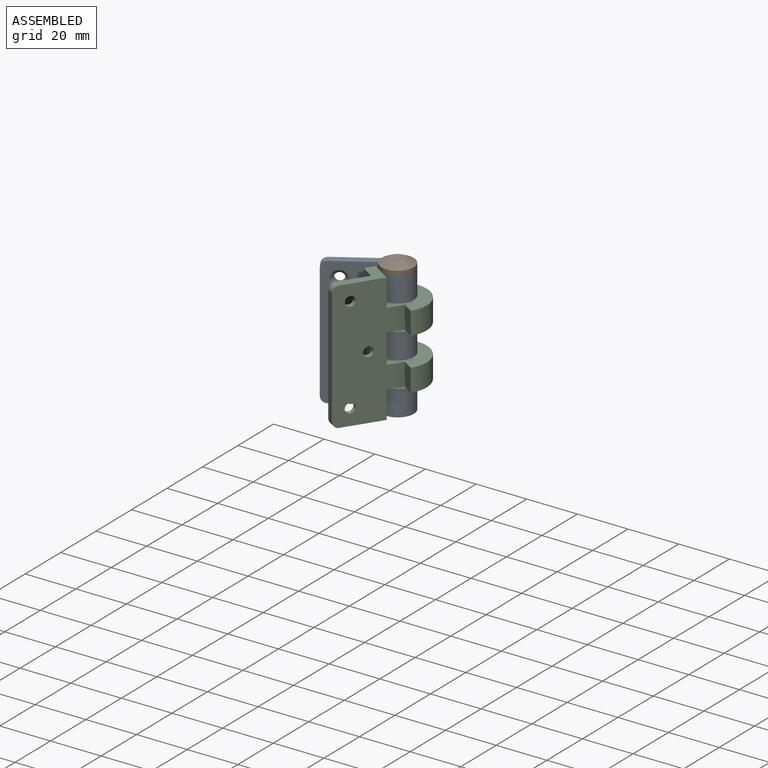
[diagram: assembled view]
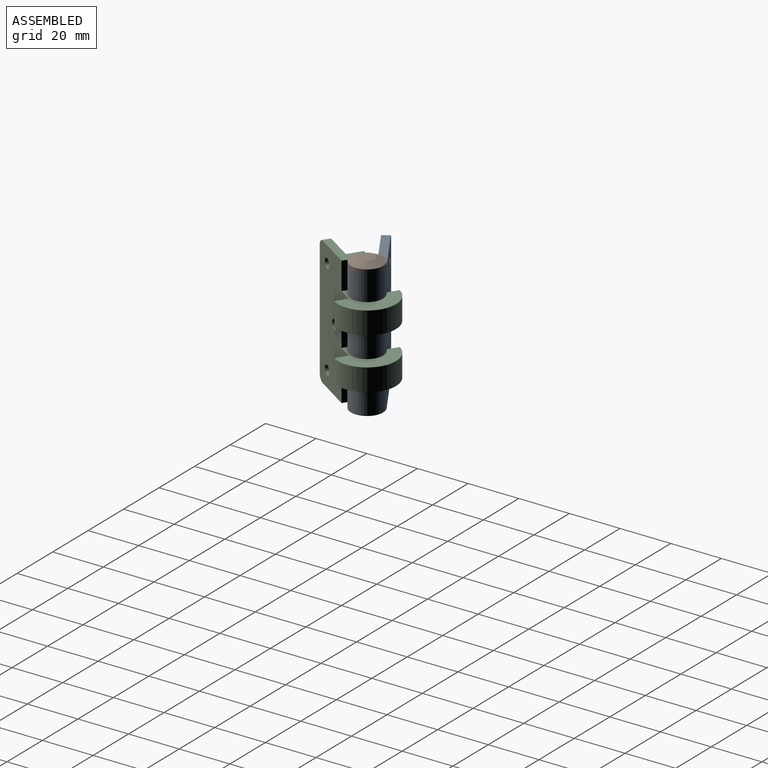
[diagram: assembled view, second angle]
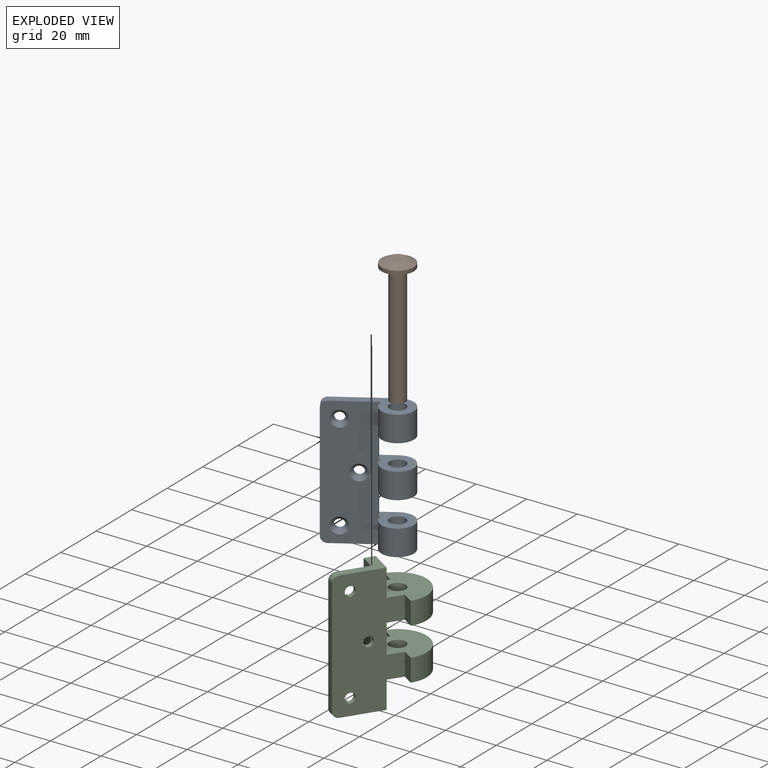
[diagram: exploded view]
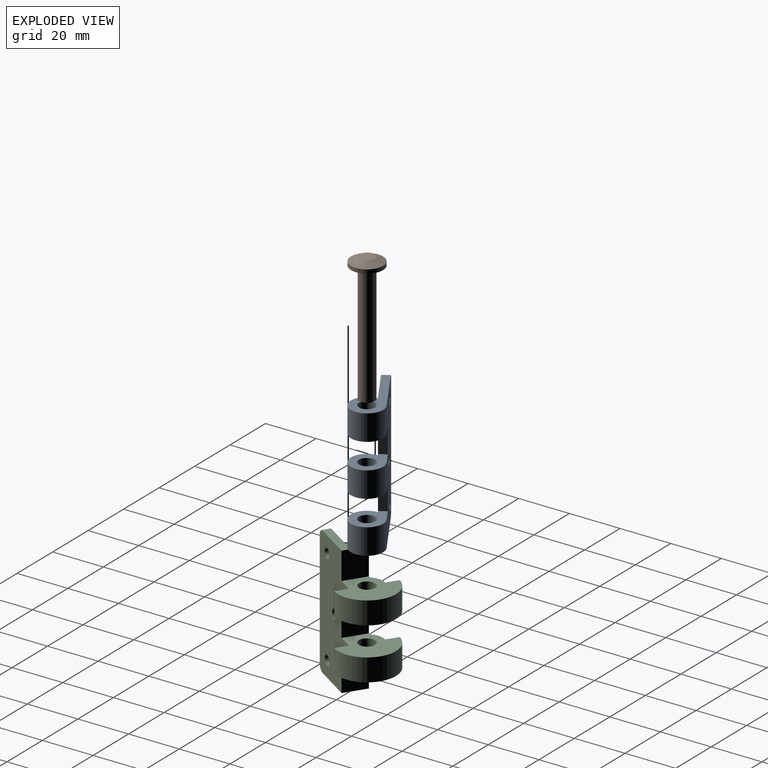
[diagram: exploded view, second angle]
ASSEMBLY  parts=3 mates=3
PART A: 25 faces, bbox 31.8x12.7x50.8 mm
  f0: plane 50.8x19.9mm, normal (0,-1,0), area 895.9mm2, adj f3,f4,f5,f6,f7,f8,f10,f11
  f1: cylinder r=3.17mm len=10.16mm, axis (0,0,1), area 202.7mm2, adj f8,f16
  f2: cylinder r=3.17mm len=10.16mm, axis (0,0,1), area 202.7mm2, adj f6,f12
  f3: cylinder r=6.35mm len=12.7mm, axis (0,0,1), area 337.8mm2, adj f0,f8,f9,f16
  f4: cylinder r=6.35mm len=12.7mm, axis (0,0,1), area 337.8mm2, adj f0,f9,f14,f17
  f5: cylinder r=6.35mm len=12.7mm, axis (0,0,1), area 337.8mm2, adj f0,f6,f9,f12
  f6: plane 29.21x12.7mm, normal (0,0,1), area 155.2mm2, adj f0,f2,f5,f9,f10
  f7: plane 45.72x3.18mm, normal (-1,0,0), area 145.2mm2, adj f0,f9,f10,f11
  f8: plane 29.21x12.7mm, normal (0,0,-1), area 155.2mm2, adj f0,f1,f3,f9,f11
  f9: plane 50.8x25.4mm, normal (0,1,0), area 1124.3mm2, adj f3,f4,f5,f6,f7,f8,f10,f11
  f10: cylinder r=2.54mm len=3.18mm, axis (0,-1,0), area 12.7mm2, adj f0,f6,f7,f9
  f11: cylinder r=2.54mm len=3.18mm, axis (0,1,0), area 12.7mm2, adj f0,f7,f8,f9
  f12: plane 12.7x12.7mm, normal (0,0,-1), area 102.8mm2, adj f0,f2,f5,f9,f13
  f13: plane 10.16x3.18mm, normal (1,0,0), area 32.3mm2, adj f0,f9,f12,f14
  f14: plane 12.7x12.7mm, normal (0,0,1), area 102.8mm2, adj f0,f4,f9,f13,f18
  f15: plane 10.16x3.18mm, normal (1,0,0), area 32.3mm2, adj f0,f9,f16,f17
  f16: plane 12.7x12.7mm, normal (0,0,1), area 102.8mm2, adj f0,f1,f3,f9,f15
  f17: plane 12.7x12.7mm, normal (0,0,-1), area 102.8mm2, adj f0,f4,f9,f15,f18
  f18: cylinder r=3.17mm len=10.16mm, axis (0,0,1), area 202.7mm2, adj f14,f17
  f19: cylinder r=1.91mm len=3.81mm, axis (0,-1,0), area 22.8mm2, adj f9,f20
  f20: cone r=1.91mm half-angle=45deg, axis (0,-1,0), area 28.7mm2, adj f0,f19
  f21: cylinder r=1.91mm len=3.81mm, axis (0,-1,0), area 22.8mm2, adj f9,f22
  f22: cone r=1.91mm half-angle=45deg, axis (0,-1,0), area 28.7mm2, adj f0,f21
  f23: cylinder r=1.91mm len=3.81mm, axis (0,-1,0), area 22.8mm2, adj f9,f24
  f24: cone r=1.91mm half-angle=45deg, axis (0,-1,0), area 28.7mm2, adj f0,f23
PART B: 6 faces, bbox 12.7x12.7x50.8 mm
  f0: cylinder r=6.35mm len=12.7mm, axis (0,0,-1), area 60mm2, adj f1,f5
  f1: plane 12.7x12.7mm, normal (0,0,-1), area 97.5mm2, adj f0,f2
  f2: cylinder r=3.05mm len=47.63mm, axis (0,0,-1), area 912.1mm2, adj f1,f3
  f3: plane 6.1x6.1mm, normal (0,0,-1), area 29.2mm2, adj f2
  f4: plane 6.1x6.1mm, normal (0,0,1), area 29.2mm2, adj f5
  f5: cone r=3.05mm half-angle=63.2deg, axis (0,0,-1), area 109.3mm2, adj f0,f4
PART C: 33 faces, bbox 36.8x22.9x50.8 mm
  f0: plane 50.8x14.83mm, normal (0,-1,0), area 659mm2, adj f11,f12,f13,f14,f25,f27,f30,f31
  f1: plane 50.8x25.4mm, normal (0,1,0), area 1043.7mm2, adj f2,f3,f11,f12,f13,f15,f16,f17
  f2: plane 8.89x5.08mm, normal (1,0,0), area 45.2mm2, adj f1,f4,f15,f18
  f3: plane 8.89x5.08mm, normal (1,0,0), area 45.2mm2, adj f1,f5,f19,f21
  f4: cylinder r=11.43mm len=22.86mm, axis (0,0,1), area 319.2mm2, adj f2,f6,f15,f18
  f5: cylinder r=11.43mm len=22.86mm, axis (0,0,1), area 319.2mm2, adj f3,f7,f19,f21
  f6: plane 8.89x5.08mm, normal (1,0,0), area 45.2mm2, adj f4,f8,f15,f18
  f7: plane 8.89x5.08mm, normal (1,0,0), area 45.2mm2, adj f5,f9,f19,f21
  f8: cylinder r=6.35mm len=8.89mm, axis (0,0,1), area 59.1mm2, adj f6,f10,f15,f18
  f9: cylinder r=6.35mm len=8.89mm, axis (0,0,1), area 59.1mm2, adj f7,f10,f19,f21
  f10: plane 50.8x5.07mm, normal (0,-1,0), area 229.5mm2, adj f8,f9,f11,f13,f14,f15,f16,f17
  f11: plane 16.51x9.53mm, normal (0,0,-1), area 79.2mm2, adj f0,f1,f10,f14,f16,f31
  f12: plane 45.72x3.18mm, normal (1,0,0), area 145.2mm2, adj f0,f1,f31,f32
  f13: plane 16.51x9.53mm, normal (0,0,1), area 79.2mm2, adj f0,f1,f10,f14,f20,f32
  f14: plane 50.8x6.35mm, normal (1,0,0), area 322.6mm2, adj f0,f10,f11,f13,f28
  f15: plane 22.86x17.78mm, normal (0,0,-1), area 246.4mm2, adj f1,f2,f4,f6,f8,f10,f16,f22
  f16: plane 10.8x9.53mm, normal (-1,0,0), area 102.8mm2, adj f1,f10,f11,f15
  f17: plane 11.43x9.53mm, normal (-1,0,0), area 108.9mm2, adj f1,f10,f18,f19
  f18: plane 22.86x17.78mm, normal (0,0,1), area 246.4mm2, adj f1,f2,f4,f6,f8,f10,f17,f22
  f19: plane 22.86x17.78mm, normal (0,0,-1), area 246.4mm2, adj f1,f3,f5,f7,f9,f10,f17,f23
  f20: plane 10.8x9.53mm, normal (-1,0,0), area 102.8mm2, adj f1,f10,f13,f21
  f21: plane 22.86x17.78mm, normal (0,0,1), area 246.4mm2, adj f1,f3,f5,f7,f9,f10,f20,f23
  f22: cylinder r=3.17mm len=8.89mm, axis (0,0,1), area 177.3mm2, adj f15,f18
  f23: cylinder r=3.17mm len=8.89mm, axis (0,0,1), area 177.3mm2, adj f19,f21
  f24: cylinder r=1.91mm len=3.81mm, axis (0,-1,0), area 22.8mm2, adj f1,f25
  f25: cone r=1.91mm half-angle=45deg, axis (0,-1,0), area 28.7mm2, adj f0,f24
  f26: cylinder r=1.91mm len=3.81mm, axis (0,-1,0), area 22.8mm2, adj f1,f27
  f27: cone r=1.91mm half-angle=45deg, axis (0,-1,0), area 28.7mm2, adj f0,f26,f28
  f28: plane 4.71x1.04mm, normal (0,1,0), area 3.4mm2, adj f14,f27
  f29: cylinder r=1.91mm len=3.81mm, axis (0,-1,0), area 22.8mm2, adj f1,f30
  f30: cone r=1.91mm half-angle=45deg, axis (0,-1,0), area 28.7mm2, adj f0,f29
  f31: cylinder r=2.54mm len=3.18mm, axis (0,-1,0), area 12.7mm2, adj f0,f1,f11,f12
  f32: cylinder r=2.54mm len=3.18mm, axis (0,1,0), area 12.7mm2, adj f0,f1,f12,f13
PLACE A rot(axis=(0,0,1),31.7deg) t=(8.02,4.16,32.9)mm fixed
PLACE B rot(axis=(0,0,-1),33.3deg) t=(-2.81,-12.77,6.91)mm
PLACE C rot(axis=(0,0,-1),123.3deg) t=(2.31,-11.8,32.9)mm
MATE planar B.f0 <-> A.f6  axis (0,0,-1) through (-4.99,-11.34,70.93)mm
MATE cylindrical B.f0 <-> A.f1  axis (0,0,-1) through (-4.99,-11.34,47.12)mm
MATE slider B.f0 <-> C.f4  axis (0,0,-1) through (-4.99,-11.34,47.12)mm
